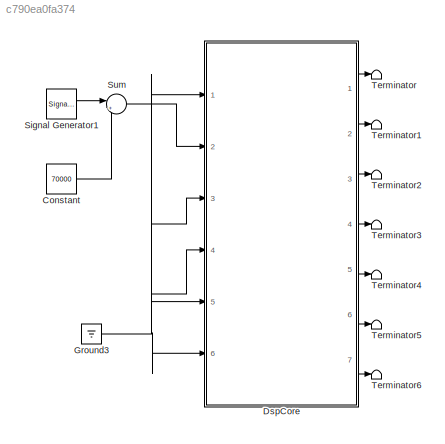
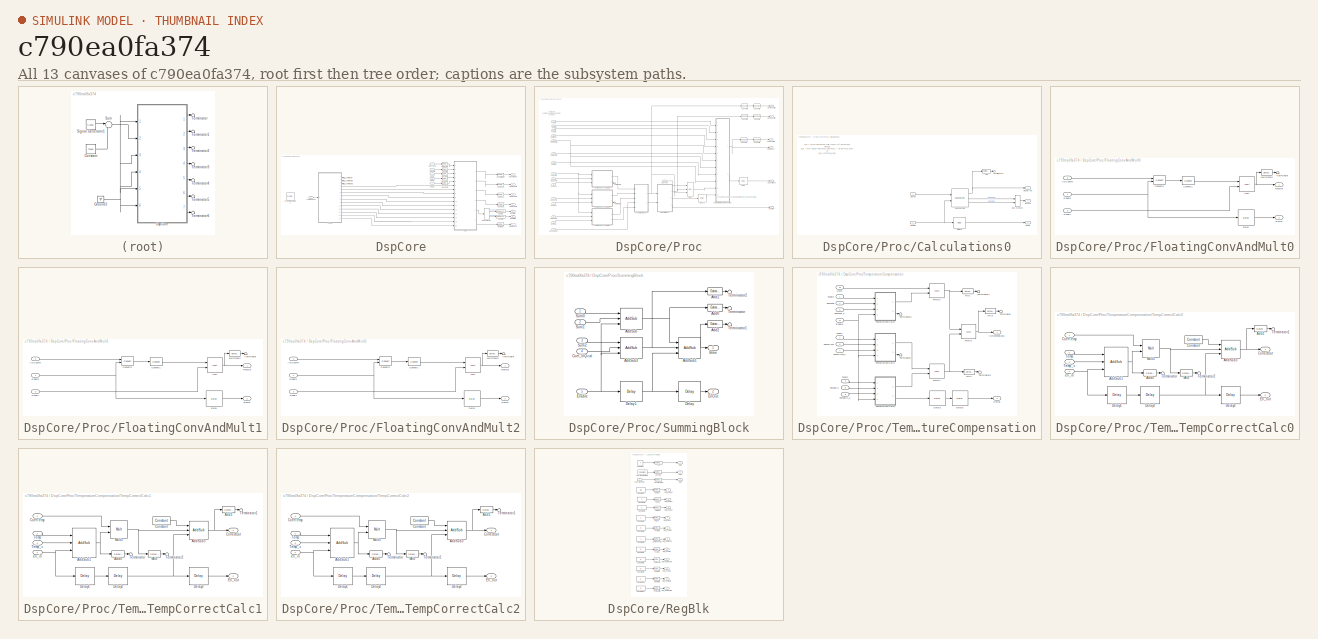
[diagram: thumbnail index - all 13 canvases of the model, root first then tree order]
MODEL slx_c790ea0fa374
KIND model
CONFIG AbsTol = auto
CONFIG EnableMultiTasking = on
CONFIG FixedStep = auto
CONFIG MaxStep = 10e-6
CONFIG MinStep = auto
CONFIG RelTol = 1e-3
CONFIG SampleTimeConstraint = Unconstrained
CONFIG Solver = ode45
CONFIG SolverName = ode45
CONFIG StartTime = 0.0
CONFIG StopTime = 1
BLOCK [Constant] Constant
  Value = 70000
BLOCK [SubSystem] DspCore
  Ports = [6, 7]
  RequestExecContextInheritance = off
  Variant = off
BLOCK [Reference] DspCore/ System Generator1  REF=xbsIndex_r4/ System Generator
  AttributesFormatString = System\nGenerator
  Ports = []
  SourceBlock = xbsIndex_r4/ System Generator
  SourceType = Xilinx System Generator Block
  Tag = genX
  UserDataPersistent = on
BLOCK [Reference] DspCore/ADCRes1  REF=xbsIndex_r4/Gateway Out
  Ports = [1, 1]
  SourceBlock = xbsIndex_r4/Gateway Out
  SourceType = Xilinx Gateway Out Block
BLOCK [Outport] DspCore/ADCResult0
  IconDisplay = Port number
  Port = 4
BLOCK [Outport] DspCore/ADCResult1
  IconDisplay = Port number
  Port = 3
BLOCK [Outport] DspCore/ADCResult2
  IconDisplay = Port number
  Port = 2
BLOCK [Inport] DspCore/ADCValid
  IconDisplay = Port number
  Port = 5
BLOCK [Outport] DspCore/ADCValidOut
  IconDisplay = Port number
BLOCK [Reference] DspCore/AdcRes0  REF=xbsIndex_r4/Gateway Out
  Ports = [1, 1]
  SourceBlock = xbsIndex_r4/Gateway Out
  SourceType = Xilinx Gateway Out Block
BLOCK [Reference] DspCore/AdcRes2  REF=xbsIndex_r4/Gateway Out
  Ports = [1, 1]
  SourceBlock = xbsIndex_r4/Gateway Out
  SourceType = Xilinx Gateway Out Block
BLOCK [Reference] DspCore/AdcSum0  REF=xbsIndex_r4/Gateway In
  Ports = [1, 1]
  SourceBlock = xbsIndex_r4/Gateway In
  SourceType = Xilinx Gateway In Block
BLOCK [Reference] DspCore/AdcSum1  REF=xbsIndex_r4/Gateway In
  Ports = [1, 1]
  SourceBlock = xbsIndex_r4/Gateway In
  SourceType = Xilinx Gateway In Block
BLOCK [Reference] DspCore/AdcSum2  REF=xbsIndex_r4/Gateway In
  Ports = [1, 1]
  SourceBlock = xbsIndex_r4/Gateway In
  SourceType = Xilinx Gateway In Block
BLOCK [Reference] DspCore/AdcValid  REF=xbsIndex_r4/Gateway In
  Ports = [1, 1]
  SourceBlock = xbsIndex_r4/Gateway In
  SourceType = Xilinx Gateway In Block
BLOCK [Reference] DspCore/AdcValidOut  REF=xbsIndex_r4/Gateway Out
  Ports = [1, 1]
  SourceBlock = xbsIndex_r4/Gateway Out
  SourceType = Xilinx Gateway Out Block
BLOCK [Inport] DspCore/Adc[0]
  IconDisplay = Port number
  Port = 2
BLOCK [Inport] DspCore/Adc[1]
  IconDisplay = Port number
  Port = 3
BLOCK [Inport] DspCore/Adc[2]
  IconDisplay = Port number
  Port = 4
BLOCK [Reference] DspCore/AppType  REF=xbsIndex_r4/Gateway In
  Ports = [1, 1]
  SourceBlock = xbsIndex_r4/Gateway In
  SourceType = Xilinx Gateway In Block
BLOCK [Inport] DspCore/AppType1
  IconDisplay = Port number
  Port = 6
BLOCK [BusSelector] DspCore/Bus Selector
  OutputSignals = ExpUnder,ExpOver
  Ports = [1, 2]
BLOCK [Reference] DspCore/DSPErr  REF=xbsIndex_r4/Gateway Out
  Ports = [1, 1]
  SourceBlock = xbsIndex_r4/Gateway Out
  SourceType = Xilinx Gateway Out Block
BLOCK [Reference] DspCore/DSPErr1  REF=xbsIndex_r4/Gateway Out
  Ports = [1, 1]
  SourceBlock = xbsIndex_r4/Gateway Out
  SourceType = Xilinx Gateway Out Block
BLOCK [Outport] DspCore/DSPError
  IconDisplay = Port number
  Port = 5
BLOCK [Outport] DspCore/DSPError1
  IconDisplay = Port number
  Port = 6
BLOCK [Reference] DspCore/FloatRes  REF=xbsIndex_r4/Gateway Out
  Ports = [1, 1]
  SourceBlock = xbsIndex_r4/Gateway Out
  SourceType = Xilinx Gateway Out Block
BLOCK [Outport] DspCore/FloatResult
  IconDisplay = Port number
  Port = 7
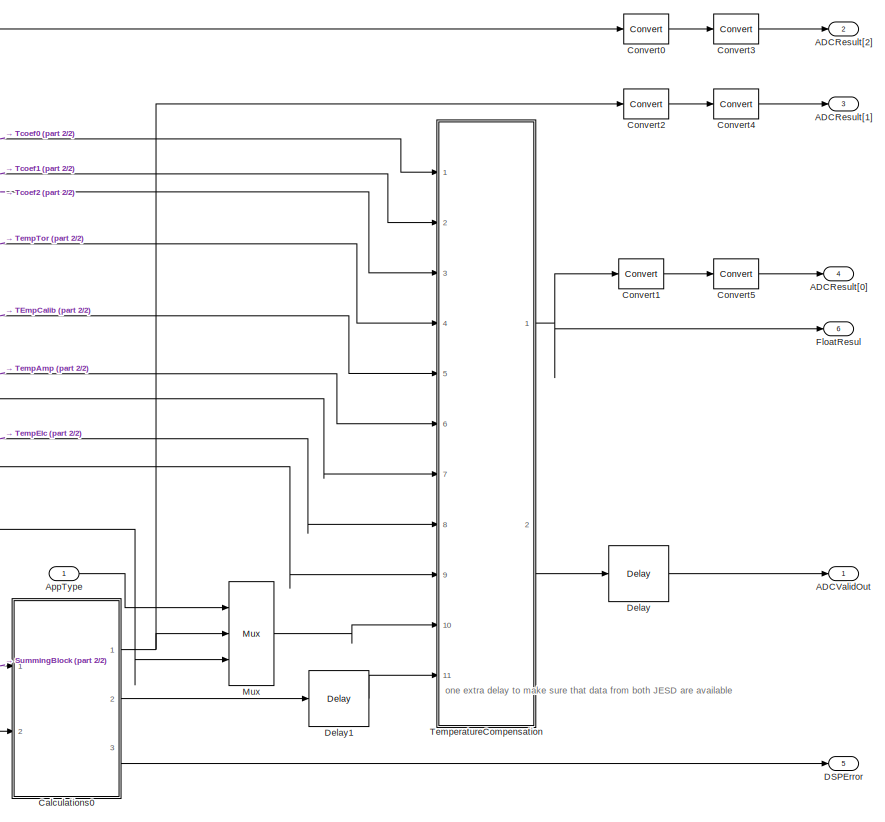
[diagram: DspCore/Proc - part 1/2, right side, full height]
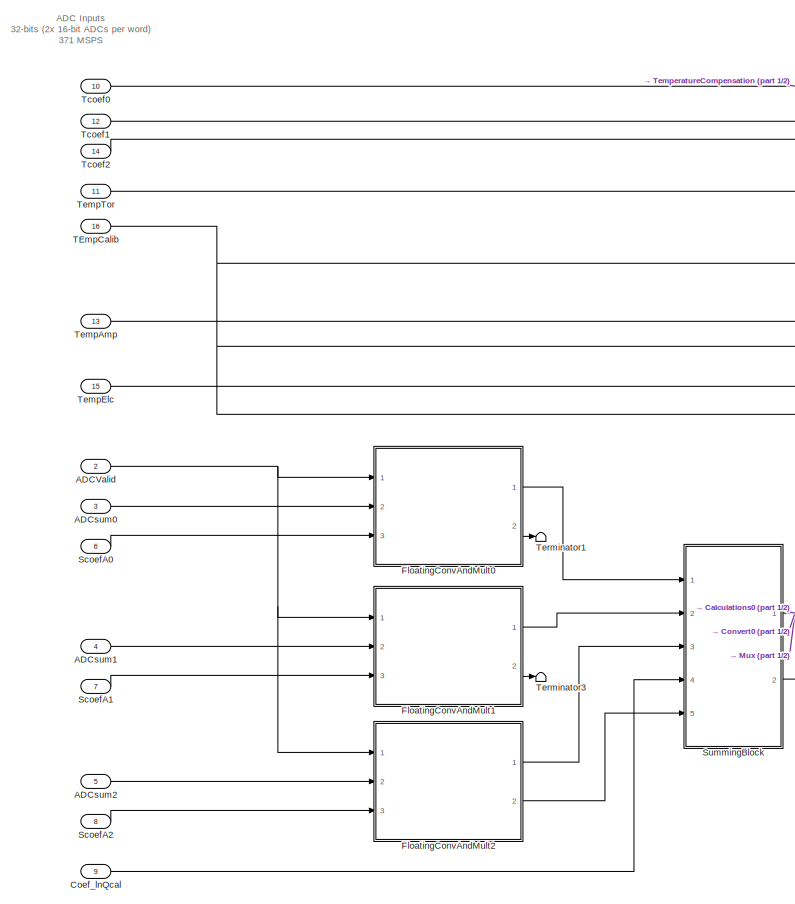
[diagram: DspCore/Proc - part 2/2, left side, full height]
BLOCK [SubSystem] DspCore/Proc
  Ports = [16, 6]
  RequestExecContextInheritance = off
  Variant = off
BLOCK [Outport] DspCore/Proc/ADCResult[0]
  IconDisplay = Port number
  Port = 4
BLOCK [Outport] DspCore/Proc/ADCResult[1]
  IconDisplay = Port number
  Port = 3
BLOCK [Outport] DspCore/Proc/ADCResult[2]
  IconDisplay = Port number
  Port = 2
BLOCK [Inport] DspCore/Proc/ADCValid
  IconDisplay = Port number
  Port = 2
BLOCK [Outport] DspCore/Proc/ADCValidOut
  IconDisplay = Port number
BLOCK [Inport] DspCore/Proc/ADCsum0
  IconDisplay = Port number
  Port = 3
BLOCK [Inport] DspCore/Proc/ADCsum1
  IconDisplay = Port number
  Port = 4
BLOCK [Inport] DspCore/Proc/ADCsum2
  IconDisplay = Port number
  Port = 5
BLOCK [Inport] DspCore/Proc/AppType
  IconDisplay = Port number
BLOCK [SubSystem] DspCore/Proc/Calculations0
  Ports = [2, 3]
  RequestExecContextInheritance = off
  Variant = off
BLOCK [Reference] DspCore/Proc/Calculations0/Add  REF=xbsIndex_r4/Gateway Out
  Ports = [1, 1]
  SourceBlock = xbsIndex_r4/Gateway Out
  SourceType = Xilinx Gateway Out Block
BLOCK [BusCreator] DspCore/Proc/Calculations0/Bus Creator
  DisplayOption = bar
  InheritFromInputs = on
  Inputs = 2
  Ports = [2, 1]
BLOCK [Inport] DspCore/Proc/Calculations0/Data0
  IconDisplay = Port number
BLOCK [Reference] DspCore/Proc/Calculations0/Delay1  REF=xbsIndex_r4/Delay
  Ports = [1, 1]
  SourceBlock = xbsIndex_r4/Delay
  SourceType = Xilinx Delay Block
BLOCK [Outport] DspCore/Proc/Calculations0/EnOut
  IconDisplay = Port number
  Port = 2
BLOCK [Inport] DspCore/Proc/Calculations0/Enable
  IconDisplay = Port number
  Port = 2
BLOCK [Outport] DspCore/Proc/Calculations0/Errors
  IconDisplay = Port number
  Port = 3
BLOCK [Reference] DspCore/Proc/Calculations0/Exponential1  REF=xbsIndex_r4/Exponential
  Ports = [2, 3]
  SourceBlock = xbsIndex_r4/Exponential
  SourceType = Xilinx Exponential Block
BLOCK [Outport] DspCore/Proc/Calculations0/Result out
  IconDisplay = Port number
BLOCK [Terminator] DspCore/Proc/Calculations0/Terminator6
BLOCK [Inport] DspCore/Proc/Coef_lnQcal
  IconDisplay = Port number
  Port = 9
  SampleTime = 5.385E-9
BLOCK [Reference] DspCore/Proc/Convert0  REF=xbsIndex_r4/Convert
  Ports = [1, 1]
  SourceBlock = xbsIndex_r4/Convert
  SourceType = Xilinx Type Converter Block
BLOCK [Reference] DspCore/Proc/Convert1  REF=xbsIndex_r4/Convert
  Ports = [1, 1]
  SourceBlock = xbsIndex_r4/Convert
  SourceType = Xilinx Type Converter Block
BLOCK [Reference] DspCore/Proc/Convert2  REF=xbsIndex_r4/Convert
  Ports = [1, 1]
  SourceBlock = xbsIndex_r4/Convert
  SourceType = Xilinx Type Converter Block
BLOCK [Reference] DspCore/Proc/Convert3  REF=xbsIndex_r4/Convert
  Ports = [1, 1]
  SourceBlock = xbsIndex_r4/Convert
  SourceType = Xilinx Type Converter Block
BLOCK [Reference] DspCore/Proc/Convert4  REF=xbsIndex_r4/Convert
  Ports = [1, 1]
  SourceBlock = xbsIndex_r4/Convert
  SourceType = Xilinx Type Converter Block
BLOCK [Reference] DspCore/Proc/Convert5  REF=xbsIndex_r4/Convert
  Ports = [1, 1]
  SourceBlock = xbsIndex_r4/Convert
  SourceType = Xilinx Type Converter Block
BLOCK [Outport] DspCore/Proc/DSPError
  IconDisplay = Port number
  Port = 5
BLOCK [Reference] DspCore/Proc/Delay  REF=xbsIndex_r4/Delay
  Ports = [1, 1]
  SourceBlock = xbsIndex_r4/Delay
  SourceType = Xilinx Delay Block
BLOCK [Reference] DspCore/Proc/Delay1  REF=xbsIndex_r4/Delay
  Ports = [1, 1]
  SourceBlock = xbsIndex_r4/Delay
  SourceType = Xilinx Delay Block
BLOCK [Outport] DspCore/Proc/FloatResul
  IconDisplay = Port number
  Port = 6
BLOCK [SubSystem] DspCore/Proc/FloatingConvAndMult0
  Ports = [3, 2]
  RequestExecContextInheritance = off
  Variant = off
BLOCK [Inport] DspCore/Proc/FloatingConvAndMult0/ADCsum0
  IconDisplay = Port number
  Port = 2
BLOCK [Reference] DspCore/Proc/FloatingConvAndMult0/Convert0  REF=xbsIndex_r4/Convert
  Ports = [2, 1]
  SourceBlock = xbsIndex_r4/Convert
  SourceType = Xilinx Type Converter Block
BLOCK [Reference] DspCore/Proc/FloatingConvAndMult0/Convert1  REF=xbsIndex_r4/Convert
  Ports = [1, 1]
  SourceBlock = xbsIndex_r4/Convert
  SourceType = Xilinx Type Converter Block
BLOCK [Reference] DspCore/Proc/FloatingConvAndMult0/Delay  REF=xbsIndex_r4/Delay
  Ports = [1, 1]
  SourceBlock = xbsIndex_r4/Delay
  SourceType = Xilinx Delay Block
BLOCK [Outport] DspCore/Proc/FloatingConvAndMult0/EnOut
  IconDisplay = Port number
  Port = 2
BLOCK [Inport] DspCore/Proc/FloatingConvAndMult0/Enable
  IconDisplay = Port number
  SampleTime = 5.385E-9
BLOCK [Reference] DspCore/Proc/FloatingConvAndMult0/Mult  REF=xbsIndex_r4/Mult
  Ports = [2, 1]
  SourceBlock = xbsIndex_r4/Mult
  SourceType = Xilinx Multiplier Block
BLOCK [Reference] DspCore/Proc/FloatingConvAndMult0/MultResult  REF=xbsIndex_r4/Gateway Out
  Ports = [1, 1]
  SourceBlock = xbsIndex_r4/Gateway Out
  SourceType = Xilinx Gateway Out Block
BLOCK [Outport] DspCore/Proc/FloatingConvAndMult0/ResOut
  IconDisplay = Port number
BLOCK [Inport] DspCore/Proc/FloatingConvAndMult0/ScoefA
  IconDisplay = Port number
  Port = 3
  SampleTime = 5.385E-9
BLOCK [Terminator] DspCore/Proc/FloatingConvAndMult0/Terminator
BLOCK [SubSystem] DspCore/Proc/FloatingConvAndMult1
  Ports = [3, 2]
  RequestExecContextInheritance = off
  Variant = off
BLOCK [Inport] DspCore/Proc/FloatingConvAndMult1/ADCsum0
  IconDisplay = Port number
  Port = 2
BLOCK [Reference] DspCore/Proc/FloatingConvAndMult1/Convert0  REF=xbsIndex_r4/Convert
  Ports = [2, 1]
  SourceBlock = xbsIndex_r4/Convert
  SourceType = Xilinx Type Converter Block
BLOCK [Reference] DspCore/Proc/FloatingConvAndMult1/Convert1  REF=xbsIndex_r4/Convert
  Ports = [1, 1]
  SourceBlock = xbsIndex_r4/Convert
  SourceType = Xilinx Type Converter Block
BLOCK [Reference] DspCore/Proc/FloatingConvAndMult1/Delay  REF=xbsIndex_r4/Delay
  Ports = [1, 1]
  SourceBlock = xbsIndex_r4/Delay
  SourceType = Xilinx Delay Block
BLOCK [Outport] DspCore/Proc/FloatingConvAndMult1/EnOut
  IconDisplay = Port number
  Port = 2
BLOCK [Inport] DspCore/Proc/FloatingConvAndMult1/Enable
  IconDisplay = Port number
  SampleTime = 5.385E-9
BLOCK [Reference] DspCore/Proc/FloatingConvAndMult1/Mult  REF=xbsIndex_r4/Mult
  Ports = [2, 1]
  SourceBlock = xbsIndex_r4/Mult
  SourceType = Xilinx Multiplier Block
BLOCK [Reference] DspCore/Proc/FloatingConvAndMult1/MultResult  REF=xbsIndex_r4/Gateway Out
  Ports = [1, 1]
  SourceBlock = xbsIndex_r4/Gateway Out
  SourceType = Xilinx Gateway Out Block
BLOCK [Outport] DspCore/Proc/FloatingConvAndMult1/ResOut
  IconDisplay = Port number
BLOCK [Inport] DspCore/Proc/FloatingConvAndMult1/ScoefA
  IconDisplay = Port number
  Port = 3
  SampleTime = 5.385E-9
BLOCK [Terminator] DspCore/Proc/FloatingConvAndMult1/Terminator
BLOCK [SubSystem] DspCore/Proc/FloatingConvAndMult2
  Ports = [3, 2]
  RequestExecContextInheritance = off
  Variant = off
BLOCK [Inport] DspCore/Proc/FloatingConvAndMult2/ADCsum0
  IconDisplay = Port number
  Port = 2
BLOCK [Reference] DspCore/Proc/FloatingConvAndMult2/Convert0  REF=xbsIndex_r4/Convert
  Ports = [2, 1]
  SourceBlock = xbsIndex_r4/Convert
  SourceType = Xilinx Type Converter Block
BLOCK [Reference] DspCore/Proc/FloatingConvAndMult2/Convert1  REF=xbsIndex_r4/Convert
  Ports = [1, 1]
  SourceBlock = xbsIndex_r4/Convert
  SourceType = Xilinx Type Converter Block
BLOCK [Reference] DspCore/Proc/FloatingConvAndMult2/Delay  REF=xbsIndex_r4/Delay
  Ports = [1, 1]
  SourceBlock = xbsIndex_r4/Delay
  SourceType = Xilinx Delay Block
BLOCK [Outport] DspCore/Proc/FloatingConvAndMult2/EnOut
  IconDisplay = Port number
  Port = 2
BLOCK [Inport] DspCore/Proc/FloatingConvAndMult2/Enable
  IconDisplay = Port number
  SampleTime = 5.385E-9
BLOCK [Reference] DspCore/Proc/FloatingConvAndMult2/Mult  REF=xbsIndex_r4/Mult
  Ports = [2, 1]
  SourceBlock = xbsIndex_r4/Mult
  SourceType = Xilinx Multiplier Block
BLOCK [Reference] DspCore/Proc/FloatingConvAndMult2/MultResult  REF=xbsIndex_r4/Gateway Out
  Ports = [1, 1]
  SourceBlock = xbsIndex_r4/Gateway Out
  SourceType = Xilinx Gateway Out Block
BLOCK [Outport] DspCore/Proc/FloatingConvAndMult2/ResOut
  IconDisplay = Port number
BLOCK [Inport] DspCore/Proc/FloatingConvAndMult2/ScoefA
  IconDisplay = Port number
  Port = 3
  SampleTime = 5.385E-9
BLOCK [Terminator] DspCore/Proc/FloatingConvAndMult2/Terminator
BLOCK [Reference] DspCore/Proc/Mux  REF=xbsIndex_r4/Mux
  Ports = [3, 1]
  SourceBlock = xbsIndex_r4/Mux
  SourceType = Xilinx Bus Multiplexer Block
BLOCK [Inport] DspCore/Proc/ScoefA0
  IconDisplay = Port number
  Port = 6
  SampleTime = 5.385E-9
BLOCK [Inport] DspCore/Proc/ScoefA1
  IconDisplay = Port number
  Port = 7
  SampleTime = 5.385E-9
BLOCK [Inport] DspCore/Proc/ScoefA2
  IconDisplay = Port number
  Port = 8
  SampleTime = 5.385E-9
BLOCK [SubSystem] DspCore/Proc/SummingBlock
  Ports = [5, 2]
  RequestExecContextInheritance = off
  Variant = off
BLOCK [Reference] DspCore/Proc/SummingBlock/Add0  REF=xbsIndex_r4/Gateway Out
  Ports = [1, 1]
  SourceBlock = xbsIndex_r4/Gateway Out
  SourceType = Xilinx Gateway Out Block
BLOCK [Reference] DspCore/Proc/SummingBlock/Add1  REF=xbsIndex_r4/Gateway Out
  Ports = [1, 1]
  SourceBlock = xbsIndex_r4/Gateway Out
  SourceType = Xilinx Gateway Out Block
BLOCK [Reference] DspCore/Proc/SummingBlock/Add2  REF=xbsIndex_r4/Gateway Out
  Ports = [1, 1]
  SourceBlock = xbsIndex_r4/Gateway Out
  SourceType = Xilinx Gateway Out Block
BLOCK [Reference] DspCore/Proc/SummingBlock/AddSub  REF=xbsIndex_r4/AddSub
  Ports = [3, 1]
  SourceBlock = xbsIndex_r4/AddSub
  SourceType = Xilinx Adder/Subtracter Block
BLOCK [Reference] DspCore/Proc/SummingBlock/AddSub1  REF=xbsIndex_r4/AddSub
  Ports = [3, 1]
  SourceBlock = xbsIndex_r4/AddSub
  SourceType = Xilinx Adder/Subtracter Block
BLOCK [Reference] DspCore/Proc/SummingBlock/AddSub2  REF=xbsIndex_r4/AddSub
  Ports = [3, 1]
  SourceBlock = xbsIndex_r4/AddSub
  SourceType = Xilinx Adder/Subtracter Block
BLOCK [Outport] DspCore/Proc/SummingBlock/Braw
  IconDisplay = Port number
BLOCK [Inport] DspCore/Proc/SummingBlock/Coef_lnQcal
  IconDisplay = Port number
  Port = 4
BLOCK [Reference] DspCore/Proc/SummingBlock/Delay  REF=xbsIndex_r4/Delay
  Ports = [1, 1]
  SourceBlock = xbsIndex_r4/Delay
  SourceType = Xilinx Delay Block
BLOCK [Reference] DspCore/Proc/SummingBlock/Delay1  REF=xbsIndex_r4/Delay
  Ports = [1, 1]
  SourceBlock = xbsIndex_r4/Delay
  SourceType = Xilinx Delay Block
BLOCK [Outport] DspCore/Proc/SummingBlock/EnOut
  IconDisplay = Port number
  Port = 2
BLOCK [Inport] DspCore/Proc/SummingBlock/Enable
  IconDisplay = Port number
  Port = 5
BLOCK [Inport] DspCore/Proc/SummingBlock/Sum0
  IconDisplay = Port number
BLOCK [Inport] DspCore/Proc/SummingBlock/Sum1
  IconDisplay = Port number
  Port = 2
BLOCK [Inport] DspCore/Proc/SummingBlock/Sum2
  IconDisplay = Port number
  Port = 3
BLOCK [Terminator] DspCore/Proc/SummingBlock/Terminator
BLOCK [Terminator] DspCore/Proc/SummingBlock/Terminator1
BLOCK [Terminator] DspCore/Proc/SummingBlock/Terminator2
BLOCK [Inport] DspCore/Proc/TEmpCalib
  IconDisplay = Port number
  Port = 16
  SampleTime = 5.385E-9
BLOCK [Inport] DspCore/Proc/Tcoef0
  IconDisplay = Port number
  Port = 10
  SampleTime = 5.385E-9
BLOCK [Inport] DspCore/Proc/Tcoef1
  IconDisplay = Port number
  Port = 12
  SampleTime = 5.385E-9
BLOCK [Inport] DspCore/Proc/Tcoef2
  IconDisplay = Port number
  Port = 14
  SampleTime = 5.385E-9
BLOCK [Inport] DspCore/Proc/TempAmp
  IconDisplay = Port number
  Port = 13
  SampleTime = 5.385E-9
BLOCK [Inport] DspCore/Proc/TempElc
  IconDisplay = Port number
  Port = 15
  SampleTime = 5.385E-9
BLOCK [Inport] DspCore/Proc/TempTor
  IconDisplay = Port number
  Port = 11
  SampleTime = 5.385E-9
BLOCK [SubSystem] DspCore/Proc/TemperatureCompensation
  Ports = [11, 2]
  RequestExecContextInheritance = off
  Variant = off
BLOCK [Outport] DspCore/Proc/TemperatureCompensation/CorrectedData
  IconDisplay = Port number
BLOCK [Inport] DspCore/Proc/TemperatureCompensation/Data
  IconDisplay = Port number
  Port = 10
BLOCK [Reference] DspCore/Proc/TemperatureCompensation/Delay2  REF=xbsIndex_r4/Delay
  Ports = [1, 1]
  SourceBlock = xbsIndex_r4/Delay
  SourceType = Xilinx Delay Block
BLOCK [Reference] DspCore/Proc/TemperatureCompensation/Delay3  REF=xbsIndex_r4/Delay
  Ports = [1, 1]
  SourceBlock = xbsIndex_r4/Delay
  SourceType = Xilinx Delay Block
BLOCK [Outport] DspCore/Proc/TemperatureCompensation/EnOut
  IconDisplay = Port number
  Port = 2
BLOCK [Inport] DspCore/Proc/TemperatureCompensation/Enable
  IconDisplay = Port number
  Port = 11
BLOCK [Reference] DspCore/Proc/TemperatureCompensation/Fmult0  REF=xbsIndex_r4/Mult
  Ports = [2, 1]
  SourceBlock = xbsIndex_r4/Mult
  SourceType = Xilinx Multiplier Block
BLOCK [Reference] DspCore/Proc/TemperatureCompensation/Fmult1  REF=xbsIndex_r4/Mult
  Ports = [2, 1]
  SourceBlock = xbsIndex_r4/Mult
  SourceType = Xilinx Multiplier Block
BLOCK [Reference] DspCore/Proc/TemperatureCompensation/Fmult2  REF=xbsIndex_r4/Mult
  Ports = [2, 1]
  SourceBlock = xbsIndex_r4/Mult
  SourceType = Xilinx Multiplier Block
BLOCK [Reference] DspCore/Proc/TemperatureCompensation/Mlt1  REF=xbsIndex_r4/Gateway Out
  Ports = [1, 1]
  SourceBlock = xbsIndex_r4/Gateway Out
  SourceType = Xilinx Gateway Out Block
BLOCK [Reference] DspCore/Proc/TemperatureCompensation/Mlt2  REF=xbsIndex_r4/Gateway Out
  Ports = [1, 1]
  SourceBlock = xbsIndex_r4/Gateway Out
  SourceType = Xilinx Gateway Out Block
BLOCK [Reference] DspCore/Proc/TemperatureCompensation/Mlt3  REF=xbsIndex_r4/Gateway Out
  Ports = [1, 1]
  SourceBlock = xbsIndex_r4/Gateway Out
  SourceType = Xilinx Gateway Out Block
BLOCK [Inport] DspCore/Proc/TemperatureCompensation/Tcoef0
  IconDisplay = Port number
BLOCK [Inport] DspCore/Proc/TemperatureCompensation/Tcoef1
  IconDisplay = Port number
  Port = 2
BLOCK [Inport] DspCore/Proc/TemperatureCompensation/Tcoef2
  IconDisplay = Port number
  Port = 3
BLOCK [Inport] DspCore/Proc/TemperatureCompensation/TempAmp
  IconDisplay = Port number
  Port = 6
BLOCK [Inport] DspCore/Proc/TemperatureCompensation/TempAmp_c
  IconDisplay = Port number
  Port = 7
BLOCK [SubSystem] DspCore/Proc/TemperatureCompensation/TempCorrectCalc0
  Ports = [4, 2]
  RequestExecContextInheritance = off
  Variant = off
BLOCK [Reference] DspCore/Proc/TemperatureCompensation/TempCorrectCalc0/Add0  REF=xbsIndex_r4/Gateway Out
  Ports = [1, 1]
  SourceBlock = xbsIndex_r4/Gateway Out
  SourceType = Xilinx Gateway Out Block
BLOCK [Reference] DspCore/Proc/TemperatureCompensation/TempCorrectCalc0/Add1  REF=xbsIndex_r4/Gateway Out
  Ports = [1, 1]
  SourceBlock = xbsIndex_r4/Gateway Out
  SourceType = Xilinx Gateway Out Block
BLOCK [Reference] DspCore/Proc/TemperatureCompensation/TempCorrectCalc0/AddSub1  REF=xbsIndex_r4/AddSub
  Ports = [3, 1]
  SourceBlock = xbsIndex_r4/AddSub
  SourceType = Xilinx Adder/Subtracter Block
BLOCK [Reference] DspCore/Proc/TemperatureCompensation/TempCorrectCalc0/AddSub3  REF=xbsIndex_r4/AddSub
  Ports = [3, 1]
  SourceBlock = xbsIndex_r4/AddSub
  SourceType = Xilinx Adder/Subtracter Block
BLOCK [Inport] DspCore/Proc/TemperatureCompensation/TempCorrectCalc0/CoefTemp
  IconDisplay = Port number
BLOCK [Reference] DspCore/Proc/TemperatureCompensation/TempCorrectCalc0/Constant  REF=xbsIndex_r4/Constant
  Ports = [0, 1]
  SourceBlock = xbsIndex_r4/Constant
  SourceType = Xilinx Constant Block Block
BLOCK [Outport] DspCore/Proc/TemperatureCompensation/TempCorrectCalc0/CorrectOut
  IconDisplay = Port number
BLOCK [Reference] DspCore/Proc/TemperatureCompensation/TempCorrectCalc0/Delay1  REF=xbsIndex_r4/Delay
  Ports = [1, 1]
  SourceBlock = xbsIndex_r4/Delay
  SourceType = Xilinx Delay Block
BLOCK [Reference] DspCore/Proc/TemperatureCompensation/TempCorrectCalc0/Delay2  REF=xbsIndex_r4/Delay
  Ports = [1, 1]
  SourceBlock = xbsIndex_r4/Delay
  SourceType = Xilinx Delay Block
BLOCK [Reference] DspCore/Proc/TemperatureCompensation/TempCorrectCalc0/Delay3  REF=xbsIndex_r4/Delay
  Ports = [1, 1]
  SourceBlock = xbsIndex_r4/Delay
  SourceType = Xilinx Delay Block
BLOCK [Outport] DspCore/Proc/TemperatureCompensation/TempCorrectCalc0/En_out
  IconDisplay = Port number
  Port = 2
BLOCK [Reference] DspCore/Proc/TemperatureCompensation/TempCorrectCalc0/Mlt0  REF=xbsIndex_r4/Gateway Out
  Ports = [1, 1]
  SourceBlock = xbsIndex_r4/Gateway Out
  SourceType = Xilinx Gateway Out Block
BLOCK [Reference] DspCore/Proc/TemperatureCompensation/TempCorrectCalc0/Mult3  REF=xbsIndex_r4/Mult
  Ports = [2, 1]
  SourceBlock = xbsIndex_r4/Mult
  SourceType = Xilinx Multiplier Block
BLOCK [Inport] DspCore/Proc/TemperatureCompensation/TempCorrectCalc0/Temp
  IconDisplay = Port number
  Port = 2
BLOCK [Inport] DspCore/Proc/TemperatureCompensation/TempCorrectCalc0/Temp_c
  IconDisplay = Port number
  Port = 3
BLOCK [Terminator] DspCore/Proc/TemperatureCompensation/TempCorrectCalc0/Terminator
BLOCK [Terminator] DspCore/Proc/TemperatureCompensation/TempCorrectCalc0/Terminator1
BLOCK [Terminator] DspCore/Proc/TemperatureCompensation/TempCorrectCalc0/Terminator2
BLOCK [Inport] DspCore/Proc/TemperatureCompensation/TempCorrectCalc0/en_in
  IconDisplay = Port number
  Port = 4
BLOCK [SubSystem] DspCore/Proc/TemperatureCompensation/TempCorrectCalc1
  Ports = [4, 2]
  RequestExecContextInheritance = off
  Variant = off
BLOCK [Reference] DspCore/Proc/TemperatureCompensation/TempCorrectCalc1/Add0  REF=xbsIndex_r4/Gateway Out
  Ports = [1, 1]
  SourceBlock = xbsIndex_r4/Gateway Out
  SourceType = Xilinx Gateway Out Block
BLOCK [Reference] DspCore/Proc/TemperatureCompensation/TempCorrectCalc1/Add1  REF=xbsIndex_r4/Gateway Out
  Ports = [1, 1]
  SourceBlock = xbsIndex_r4/Gateway Out
  SourceType = Xilinx Gateway Out Block
BLOCK [Reference] DspCore/Proc/TemperatureCompensation/TempCorrectCalc1/AddSub1  REF=xbsIndex_r4/AddSub
  Ports = [3, 1]
  SourceBlock = xbsIndex_r4/AddSub
  SourceType = Xilinx Adder/Subtracter Block
BLOCK [Reference] DspCore/Proc/TemperatureCompensation/TempCorrectCalc1/AddSub3  REF=xbsIndex_r4/AddSub
  Ports = [3, 1]
  SourceBlock = xbsIndex_r4/AddSub
  SourceType = Xilinx Adder/Subtracter Block
BLOCK [Inport] DspCore/Proc/TemperatureCompensation/TempCorrectCalc1/CoefTemp
  IconDisplay = Port number
BLOCK [Reference] DspCore/Proc/TemperatureCompensation/TempCorrectCalc1/Constant  REF=xbsIndex_r4/Constant
  Ports = [0, 1]
  SourceBlock = xbsIndex_r4/Constant
  SourceType = Xilinx Constant Block Block
BLOCK [Outport] DspCore/Proc/TemperatureCompensation/TempCorrectCalc1/CorrectOut
  IconDisplay = Port number
BLOCK [Reference] DspCore/Proc/TemperatureCompensation/TempCorrectCalc1/Delay1  REF=xbsIndex_r4/Delay
  Ports = [1, 1]
  SourceBlock = xbsIndex_r4/Delay
  SourceType = Xilinx Delay Block
BLOCK [Reference] DspCore/Proc/TemperatureCompensation/TempCorrectCalc1/Delay2  REF=xbsIndex_r4/Delay
  Ports = [1, 1]
  SourceBlock = xbsIndex_r4/Delay
  SourceType = Xilinx Delay Block
BLOCK [Reference] DspCore/Proc/TemperatureCompensation/TempCorrectCalc1/Delay3  REF=xbsIndex_r4/Delay
  Ports = [1, 1]
  SourceBlock = xbsIndex_r4/Delay
  SourceType = Xilinx Delay Block
BLOCK [Outport] DspCore/Proc/TemperatureCompensation/TempCorrectCalc1/En_out
  IconDisplay = Port number
  Port = 2
BLOCK [Reference] DspCore/Proc/TemperatureCompensation/TempCorrectCalc1/Mlt0  REF=xbsIndex_r4/Gateway Out
  Ports = [1, 1]
  SourceBlock = xbsIndex_r4/Gateway Out
  SourceType = Xilinx Gateway Out Block
BLOCK [Reference] DspCore/Proc/TemperatureCompensation/TempCorrectCalc1/Mult3  REF=xbsIndex_r4/Mult
  Ports = [2, 1]
  SourceBlock = xbsIndex_r4/Mult
  SourceType = Xilinx Multiplier Block
BLOCK [Inport] DspCore/Proc/TemperatureCompensation/TempCorrectCalc1/Temp
  IconDisplay = Port number
  Port = 2
BLOCK [Inport] DspCore/Proc/TemperatureCompensation/TempCorrectCalc1/Temp_c
  IconDisplay = Port number
  Port = 3
BLOCK [Terminator] DspCore/Proc/TemperatureCompensation/TempCorrectCalc1/Terminator
BLOCK [Terminator] DspCore/Proc/TemperatureCompensation/TempCorrectCalc1/Terminator1
BLOCK [Terminator] DspCore/Proc/TemperatureCompensation/TempCorrectCalc1/Terminator2
BLOCK [Inport] DspCore/Proc/TemperatureCompensation/TempCorrectCalc1/en_in
  IconDisplay = Port number
  Port = 4
BLOCK [SubSystem] DspCore/Proc/TemperatureCompensation/TempCorrectCalc2
  Ports = [4, 2]
  RequestExecContextInheritance = off
  Variant = off
BLOCK [Reference] DspCore/Proc/TemperatureCompensation/TempCorrectCalc2/Add0  REF=xbsIndex_r4/Gateway Out
  Ports = [1, 1]
  SourceBlock = xbsIndex_r4/Gateway Out
  SourceType = Xilinx Gateway Out Block
BLOCK [Reference] DspCore/Proc/TemperatureCompensation/TempCorrectCalc2/Add1  REF=xbsIndex_r4/Gateway Out
  Ports = [1, 1]
  SourceBlock = xbsIndex_r4/Gateway Out
  SourceType = Xilinx Gateway Out Block
BLOCK [Reference] DspCore/Proc/TemperatureCompensation/TempCorrectCalc2/AddSub1  REF=xbsIndex_r4/AddSub
  Ports = [3, 1]
  SourceBlock = xbsIndex_r4/AddSub
  SourceType = Xilinx Adder/Subtracter Block
BLOCK [Reference] DspCore/Proc/TemperatureCompensation/TempCorrectCalc2/AddSub3  REF=xbsIndex_r4/AddSub
  Ports = [3, 1]
  SourceBlock = xbsIndex_r4/AddSub
  SourceType = Xilinx Adder/Subtracter Block
BLOCK [Inport] DspCore/Proc/TemperatureCompensation/TempCorrectCalc2/CoefTemp
  IconDisplay = Port number
BLOCK [Reference] DspCore/Proc/TemperatureCompensation/TempCorrectCalc2/Constant  REF=xbsIndex_r4/Constant
  Ports = [0, 1]
  SourceBlock = xbsIndex_r4/Constant
  SourceType = Xilinx Constant Block Block
BLOCK [Outport] DspCore/Proc/TemperatureCompensation/TempCorrectCalc2/CorrectOut
  IconDisplay = Port number
BLOCK [Reference] DspCore/Proc/TemperatureCompensation/TempCorrectCalc2/Delay1  REF=xbsIndex_r4/Delay
  Ports = [1, 1]
  SourceBlock = xbsIndex_r4/Delay
  SourceType = Xilinx Delay Block
BLOCK [Reference] DspCore/Proc/TemperatureCompensation/TempCorrectCalc2/Delay2  REF=xbsIndex_r4/Delay
  Ports = [1, 1]
  SourceBlock = xbsIndex_r4/Delay
  SourceType = Xilinx Delay Block
BLOCK [Reference] DspCore/Proc/TemperatureCompensation/TempCorrectCalc2/Delay3  REF=xbsIndex_r4/Delay
  Ports = [1, 1]
  SourceBlock = xbsIndex_r4/Delay
  SourceType = Xilinx Delay Block
BLOCK [Outport] DspCore/Proc/TemperatureCompensation/TempCorrectCalc2/En_out
  IconDisplay = Port number
  Port = 2
BLOCK [Reference] DspCore/Proc/TemperatureCompensation/TempCorrectCalc2/Mlt0  REF=xbsIndex_r4/Gateway Out
  Ports = [1, 1]
  SourceBlock = xbsIndex_r4/Gateway Out
  SourceType = Xilinx Gateway Out Block
BLOCK [Reference] DspCore/Proc/TemperatureCompensation/TempCorrectCalc2/Mult3  REF=xbsIndex_r4/Mult
  Ports = [2, 1]
  SourceBlock = xbsIndex_r4/Mult
  SourceType = Xilinx Multiplier Block
BLOCK [Inport] DspCore/Proc/TemperatureCompensation/TempCorrectCalc2/Temp
  IconDisplay = Port number
  Port = 2
BLOCK [Inport] DspCore/Proc/TemperatureCompensation/TempCorrectCalc2/Temp_c
  IconDisplay = Port number
  Port = 3
BLOCK [Terminator] DspCore/Proc/TemperatureCompensation/TempCorrectCalc2/Terminator
BLOCK [Terminator] DspCore/Proc/TemperatureCompensation/TempCorrectCalc2/Terminator1
BLOCK [Terminator] DspCore/Proc/TemperatureCompensation/TempCorrectCalc2/Terminator2
BLOCK [Inport] DspCore/Proc/TemperatureCompensation/TempCorrectCalc2/en_in
  IconDisplay = Port number
  Port = 4
BLOCK [Inport] DspCore/Proc/TemperatureCompensation/TempElc
  IconDisplay = Port number
  Port = 8
BLOCK [Inport] DspCore/Proc/TemperatureCompensation/TempElc_c
  IconDisplay = Port number
  Port = 9
BLOCK [Inport] DspCore/Proc/TemperatureCompensation/TempTor
  IconDisplay = Port number
  Port = 4
BLOCK [Inport] DspCore/Proc/TemperatureCompensation/TempTor_c
  IconDisplay = Port number
  Port = 5
BLOCK [Terminator] DspCore/Proc/TemperatureCompensation/Terminator
BLOCK [Terminator] DspCore/Proc/TemperatureCompensation/Terminator1
BLOCK [Terminator] DspCore/Proc/TemperatureCompensation/Terminator2
BLOCK [Terminator] DspCore/Proc/TemperatureCompensation/Terminator3
BLOCK [Terminator] DspCore/Proc/TemperatureCompensation/Terminator6
BLOCK [Terminator] DspCore/Proc/Terminator1
BLOCK [Terminator] DspCore/Proc/Terminator3
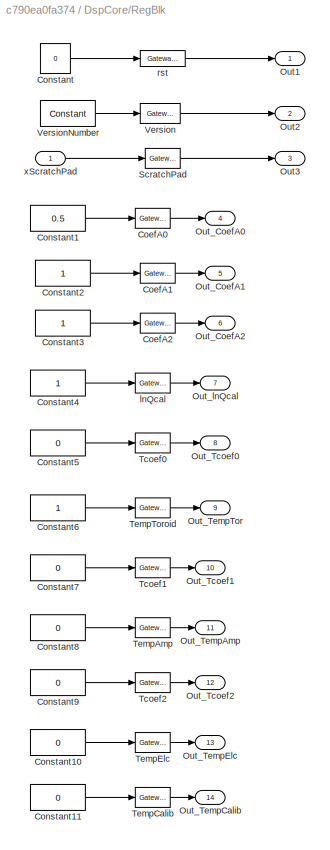
BLOCK [SubSystem] DspCore/RegBlk
  Ports = [1, 14]
  RequestExecContextInheritance = off
  Variant = off
BLOCK [Reference] DspCore/RegBlk/CoefA0  REF=xbsIndex_r4/Gateway In
  Ports = [1, 1]
  SourceBlock = xbsIndex_r4/Gateway In
  SourceType = Xilinx Gateway In Block
BLOCK [Reference] DspCore/RegBlk/CoefA1  REF=xbsIndex_r4/Gateway In
  Ports = [1, 1]
  SourceBlock = xbsIndex_r4/Gateway In
  SourceType = Xilinx Gateway In Block
BLOCK [Reference] DspCore/RegBlk/CoefA2  REF=xbsIndex_r4/Gateway In
  Ports = [1, 1]
  SourceBlock = xbsIndex_r4/Gateway In
  SourceType = Xilinx Gateway In Block
BLOCK [Constant] DspCore/RegBlk/Constant
  Value = 0
BLOCK [Constant] DspCore/RegBlk/Constant1
  Value = 0.5
BLOCK [Constant] DspCore/RegBlk/Constant10
  Value = 0
BLOCK [Constant] DspCore/RegBlk/Constant11
  Value = 0
BLOCK [Constant] DspCore/RegBlk/Constant2
BLOCK [Constant] DspCore/RegBlk/Constant3
BLOCK [Constant] DspCore/RegBlk/Constant4
BLOCK [Constant] DspCore/RegBlk/Constant5
  Value = 0
BLOCK [Constant] DspCore/RegBlk/Constant6
BLOCK [Constant] DspCore/RegBlk/Constant7
  Value = 0
BLOCK [Constant] DspCore/RegBlk/Constant8
  Value = 0
BLOCK [Constant] DspCore/RegBlk/Constant9
  Value = 0
BLOCK [Outport] DspCore/RegBlk/Out1
  IconDisplay = Port number
BLOCK [Outport] DspCore/RegBlk/Out2
  IconDisplay = Port number
  Port = 2
BLOCK [Outport] DspCore/RegBlk/Out3
  IconDisplay = Port number
  Port = 3
BLOCK [Outport] DspCore/RegBlk/Out_CoefA0
  IconDisplay = Port number
  Port = 4
BLOCK [Outport] DspCore/RegBlk/Out_CoefA1
  IconDisplay = Port number
  Port = 5
BLOCK [Outport] DspCore/RegBlk/Out_CoefA2
  IconDisplay = Port number
  Port = 6
BLOCK [Outport] DspCore/RegBlk/Out_Tcoef0
  IconDisplay = Port number
  Port = 8
BLOCK [Outport] DspCore/RegBlk/Out_Tcoef1
  IconDisplay = Port number
  Port = 10
BLOCK [Outport] DspCore/RegBlk/Out_Tcoef2
  IconDisplay = Port number
  Port = 12
BLOCK [Outport] DspCore/RegBlk/Out_TempAmp
  IconDisplay = Port number
  Port = 11
BLOCK [Outport] DspCore/RegBlk/Out_TempCalib
  IconDisplay = Port number
  Port = 14
BLOCK [Outport] DspCore/RegBlk/Out_TempElc
  IconDisplay = Port number
  Port = 13
BLOCK [Outport] DspCore/RegBlk/Out_TempTor
  IconDisplay = Port number
  Port = 9
BLOCK [Outport] DspCore/RegBlk/Out_lnQcal
  IconDisplay = Port number
  Port = 7
BLOCK [Reference] DspCore/RegBlk/ScratchPad  REF=xbsIndex_r4/Gateway In
  Ports = [1, 1]
  SourceBlock = xbsIndex_r4/Gateway In
  SourceType = Xilinx Gateway In Block
BLOCK [Reference] DspCore/RegBlk/Tcoef0  REF=xbsIndex_r4/Gateway In
  Ports = [1, 1]
  SourceBlock = xbsIndex_r4/Gateway In
  SourceType = Xilinx Gateway In Block
BLOCK [Reference] DspCore/RegBlk/Tcoef1  REF=xbsIndex_r4/Gateway In
  Ports = [1, 1]
  SourceBlock = xbsIndex_r4/Gateway In
  SourceType = Xilinx Gateway In Block
BLOCK [Reference] DspCore/RegBlk/Tcoef2  REF=xbsIndex_r4/Gateway In
  Ports = [1, 1]
  SourceBlock = xbsIndex_r4/Gateway In
  SourceType = Xilinx Gateway In Block
BLOCK [Reference] DspCore/RegBlk/TempAmp  REF=xbsIndex_r4/Gateway In
  Ports = [1, 1]
  SourceBlock = xbsIndex_r4/Gateway In
  SourceType = Xilinx Gateway In Block
BLOCK [Reference] DspCore/RegBlk/TempCalib  REF=xbsIndex_r4/Gateway In
  Ports = [1, 1]
  SourceBlock = xbsIndex_r4/Gateway In
  SourceType = Xilinx Gateway In Block
BLOCK [Reference] DspCore/RegBlk/TempElc  REF=xbsIndex_r4/Gateway In
  Ports = [1, 1]
  SourceBlock = xbsIndex_r4/Gateway In
  SourceType = Xilinx Gateway In Block
BLOCK [Reference] DspCore/RegBlk/TempToroid  REF=xbsIndex_r4/Gateway In
  Ports = [1, 1]
  SourceBlock = xbsIndex_r4/Gateway In
  SourceType = Xilinx Gateway In Block
BLOCK [Reference] DspCore/RegBlk/Version  REF=xbsIndex_r4/Gateway Out
  Ports = [1, 1]
  SourceBlock = xbsIndex_r4/Gateway Out
  SourceType = Xilinx Gateway Out Block
BLOCK [Reference] DspCore/RegBlk/VersionNumber  REF=xbsIndex_r4/Constant
  Ports = [0, 1]
  SourceBlock = xbsIndex_r4/Constant
  SourceType = Xilinx Constant Block Block
BLOCK [Reference] DspCore/RegBlk/lnQcal  REF=xbsIndex_r4/Gateway In
  Ports = [1, 1]
  SourceBlock = xbsIndex_r4/Gateway In
  SourceType = Xilinx Gateway In Block
BLOCK [Reference] DspCore/RegBlk/rst  REF=xbsIndex_r4/Gateway In
  Ports = [1, 1]
  SourceBlock = xbsIndex_r4/Gateway In
  SourceType = Xilinx Gateway In Block
BLOCK [Inport] DspCore/RegBlk/xScratchPad
  IconDisplay = Port number
BLOCK [Terminator] DspCore/Terminator
BLOCK [Terminator] DspCore/Terminator1
BLOCK [Terminator] DspCore/Terminator2
BLOCK [Inport] DspCore/xScratchPad
  IconDisplay = Port number
BLOCK [Ground] Ground3
BLOCK [SignalGenerator] Signal Generator1
  Amplitude = 65000
  Frequency = 1E+6
  Ports = [0, 1]
  Units = rad/sec
BLOCK [Sum] Sum
  IconShape = round
  InputSameDT = off
  Inputs = |++
  OutDataTypeStr = Inherit: Inherit via internal rule
  Ports = [2, 1]
  SaturateOnIntegerOverflow = off
BLOCK [Terminator] Terminator
BLOCK [Terminator] Terminator1
BLOCK [Terminator] Terminator2
BLOCK [Terminator] Terminator3
BLOCK [Terminator] Terminator4
BLOCK [Terminator] Terminator5
BLOCK [Terminator] Terminator6
ANNOTATION DspCore/Proc: ADC Inputs 32-bits (2x 16-bit ADCs per word) 371 MSPS
ANNOTATION DspCore/Proc: one extra delay to make sure that data from both JESD are available
ANNOTATION DspCore/Proc/Calculations0: Q_in = Q_cal*(Real losses/calib Loses)*10^(Braw/Ucal) Rewrite Q_in = exp^(lnQcal*(Real loses/calib loses) + Braw*(ln10/Ucal)) Or Q_in= exp^Braw_new BRaw=SUM0(ADC(i))*A0+ SUM1(ADC(i))*A1 +SUM2(ADC(i))*A2 SUms done outside of core Braw_new = SUM0(ADC(i))*A0_new+ SUM1(ADC(i))*A1_new +SUM2(ADC(i))*A2_new + CoefB A0_new = A0 *(ln10/Ucal) A1_new = A1 *(ln10/Ucal) A2_new = A2 *(ln10/Ucal) CoefB = ln(Qcal...<+48ch>
LINE Constant:1 -> Sum:2
LINE DspCore/ADCRes1:1 -> DspCore/ADCResult1:1
LINE DspCore/ADCValid:1 -> DspCore/AdcValid:1
LINE DspCore/AdcRes0:1 -> DspCore/ADCResult0:1
LINE DspCore/AdcRes2:1 -> DspCore/ADCResult2:1
LINE DspCore/AdcSum0:1 -> DspCore/Proc:3
LINE DspCore/AdcSum1:1 -> DspCore/Proc:4
LINE DspCore/AdcSum2:1 -> DspCore/Proc:5
LINE DspCore/AdcValid:1 -> DspCore/Proc:2
LINE DspCore/AdcValidOut:1 -> DspCore/ADCValidOut:1
LINE DspCore/Adc[0]:1 -> DspCore/AdcSum0:1
LINE DspCore/Adc[1]:1 -> DspCore/AdcSum1:1
LINE DspCore/Adc[2]:1 -> DspCore/AdcSum2:1
LINE DspCore/AppType1:1 -> DspCore/AppType:1
LINE DspCore/AppType:1 -> DspCore/Proc:1
LINE DspCore/Bus Selector:1 -> DspCore/DSPErr:1
LINE DspCore/Bus Selector:2 -> DspCore/DSPErr1:1
LINE DspCore/DSPErr1:1 -> DspCore/DSPError1:1
LINE DspCore/DSPErr:1 -> DspCore/DSPError:1
LINE DspCore/FloatRes:1 -> DspCore/FloatResult:1
NET DspCore/Proc/ADCValid:1 -> DspCore/Proc/FloatingConvAndMult0:1, DspCore/Proc/FloatingConvAndMult1:1, DspCore/Proc/FloatingConvAndMult2:1
LINE DspCore/Proc/ADCsum0:1 -> DspCore/Proc/FloatingConvAndMult0:2
LINE DspCore/Proc/ADCsum1:1 -> DspCore/Proc/FloatingConvAndMult1:2
LINE DspCore/Proc/ADCsum2:1 -> DspCore/Proc/FloatingConvAndMult2:2
LINE DspCore/Proc/AppType:1 -> DspCore/Proc/Mux:1
LINE DspCore/Proc/Calculations0/Add:1 -> DspCore/Proc/Calculations0/Terminator6:1
LINE DspCore/Proc/Calculations0/Bus Creator:1 -> DspCore/Proc/Calculations0/Errors:1
LINE DspCore/Proc/Calculations0/Data0:1 -> DspCore/Proc/Calculations0/Exponential1:1
LINE DspCore/Proc/Calculations0/Delay1:1 -> DspCore/Proc/Calculations0/EnOut:1
NET DspCore/Proc/Calculations0/Enable:1 -> DspCore/Proc/Calculations0/Delay1:1, DspCore/Proc/Calculations0/Exponential1:2
NET DspCore/Proc/Calculations0/Exponential1:1 -> DspCore/Proc/Calculations0/Add:1, DspCore/Proc/Calculations0/Result out:1
LINE DspCore/Proc/Calculations0/Exponential1:2 -> DspCore/Proc/Calculations0/Bus Creator:1
LINE DspCore/Proc/Calculations0/Exponential1:3 -> DspCore/Proc/Calculations0/Bus Creator:2
NET DspCore/Proc/Calculations0:1 -> DspCore/Proc/Convert2:1, DspCore/Proc/Mux:2
LINE DspCore/Proc/Calculations0:2 -> DspCore/Proc/Delay1:1
LINE DspCore/Proc/Calculations0:3 -> DspCore/Proc/DSPError:1
LINE DspCore/Proc/Coef_lnQcal:1 -> DspCore/Proc/SummingBlock:4
LINE DspCore/Proc/Convert0:1 -> DspCore/Proc/Convert3:1
LINE DspCore/Proc/Convert1:1 -> DspCore/Proc/Convert5:1
LINE DspCore/Proc/Convert2:1 -> DspCore/Proc/Convert4:1
LINE DspCore/Proc/Convert3:1 -> DspCore/Proc/ADCResult[2]:1
LINE DspCore/Proc/Convert4:1 -> DspCore/Proc/ADCResult[1]:1
LINE DspCore/Proc/Convert5:1 -> DspCore/Proc/ADCResult[0]:1
LINE DspCore/Proc/Delay1:1 -> DspCore/Proc/TemperatureCompensation:11
LINE DspCore/Proc/Delay:1 -> DspCore/Proc/ADCValidOut:1
LINE DspCore/Proc/FloatingConvAndMult0/ADCsum0:1 -> DspCore/Proc/FloatingConvAndMult0/Convert0:1
LINE DspCore/Proc/FloatingConvAndMult0/Convert0:1 -> DspCore/Proc/FloatingConvAndMult0/Convert1:1
LINE DspCore/Proc/FloatingConvAndMult0/Convert1:1 -> DspCore/Proc/FloatingConvAndMult0/Mult:1
LINE DspCore/Proc/FloatingConvAndMult0/Delay:1 -> DspCore/Proc/FloatingConvAndMult0/EnOut:1
NET DspCore/Proc/FloatingConvAndMult0/Enable:1 -> DspCore/Proc/FloatingConvAndMult0/Convert0:2, DspCore/Proc/FloatingConvAndMult0/Delay:1
NET DspCore/Proc/FloatingConvAndMult0/Mult:1 -> DspCore/Proc/FloatingConvAndMult0/MultResult:1, DspCore/Proc/FloatingConvAndMult0/ResOut:1
LINE DspCore/Proc/FloatingConvAndMult0/MultResult:1 -> DspCore/Proc/FloatingConvAndMult0/Terminator:1
LINE DspCore/Proc/FloatingConvAndMult0/ScoefA:1 -> DspCore/Proc/FloatingConvAndMult0/Mult:2
LINE DspCore/Proc/FloatingConvAndMult0:1 -> DspCore/Proc/SummingBlock:1
LINE DspCore/Proc/FloatingConvAndMult0:2 -> DspCore/Proc/Terminator1:1
LINE DspCore/Proc/FloatingConvAndMult1/ADCsum0:1 -> DspCore/Proc/FloatingConvAndMult1/Convert0:1
LINE DspCore/Proc/FloatingConvAndMult1/Convert0:1 -> DspCore/Proc/FloatingConvAndMult1/Convert1:1
LINE DspCore/Proc/FloatingConvAndMult1/Convert1:1 -> DspCore/Proc/FloatingConvAndMult1/Mult:1
LINE DspCore/Proc/FloatingConvAndMult1/Delay:1 -> DspCore/Proc/FloatingConvAndMult1/EnOut:1
NET DspCore/Proc/FloatingConvAndMult1/Enable:1 -> DspCore/Proc/FloatingConvAndMult1/Convert0:2, DspCore/Proc/FloatingConvAndMult1/Delay:1
NET DspCore/Proc/FloatingConvAndMult1/Mult:1 -> DspCore/Proc/FloatingConvAndMult1/MultResult:1, DspCore/Proc/FloatingConvAndMult1/ResOut:1
LINE DspCore/Proc/FloatingConvAndMult1/MultResult:1 -> DspCore/Proc/FloatingConvAndMult1/Terminator:1
LINE DspCore/Proc/FloatingConvAndMult1/ScoefA:1 -> DspCore/Proc/FloatingConvAndMult1/Mult:2
LINE DspCore/Proc/FloatingConvAndMult1:1 -> DspCore/Proc/SummingBlock:2
LINE DspCore/Proc/FloatingConvAndMult1:2 -> DspCore/Proc/Terminator3:1
LINE DspCore/Proc/FloatingConvAndMult2/ADCsum0:1 -> DspCore/Proc/FloatingConvAndMult2/Convert0:1
LINE DspCore/Proc/FloatingConvAndMult2/Convert0:1 -> DspCore/Proc/FloatingConvAndMult2/Convert1:1
LINE DspCore/Proc/FloatingConvAndMult2/Convert1:1 -> DspCore/Proc/FloatingConvAndMult2/Mult:1
LINE DspCore/Proc/FloatingConvAndMult2/Delay:1 -> DspCore/Proc/FloatingConvAndMult2/EnOut:1
NET DspCore/Proc/FloatingConvAndMult2/Enable:1 -> DspCore/Proc/FloatingConvAndMult2/Convert0:2, DspCore/Proc/FloatingConvAndMult2/Delay:1
NET DspCore/Proc/FloatingConvAndMult2/Mult:1 -> DspCore/Proc/FloatingConvAndMult2/MultResult:1, DspCore/Proc/FloatingConvAndMult2/ResOut:1
LINE DspCore/Proc/FloatingConvAndMult2/MultResult:1 -> DspCore/Proc/FloatingConvAndMult2/Terminator:1
LINE DspCore/Proc/FloatingConvAndMult2/ScoefA:1 -> DspCore/Proc/FloatingConvAndMult2/Mult:2
LINE DspCore/Proc/FloatingConvAndMult2:1 -> DspCore/Proc/SummingBlock:3
LINE DspCore/Proc/FloatingConvAndMult2:2 -> DspCore/Proc/SummingBlock:5
LINE DspCore/Proc/Mux:1 -> DspCore/Proc/TemperatureCompensation:10
LINE DspCore/Proc/ScoefA0:1 -> DspCore/Proc/FloatingConvAndMult0:3
LINE DspCore/Proc/ScoefA1:1 -> DspCore/Proc/FloatingConvAndMult1:3
LINE DspCore/Proc/ScoefA2:1 -> DspCore/Proc/FloatingConvAndMult2:3
LINE DspCore/Proc/SummingBlock/Add0:1 -> DspCore/Proc/SummingBlock/Terminator:1
LINE DspCore/Proc/SummingBlock/Add1:1 -> DspCore/Proc/SummingBlock/Terminator2:1
LINE DspCore/Proc/SummingBlock/Add2:1 -> DspCore/Proc/SummingBlock/Terminator1:1
NET DspCore/Proc/SummingBlock/AddSub1:1 -> DspCore/Proc/SummingBlock/Add2:1, DspCore/Proc/SummingBlock/Braw:1
NET DspCore/Proc/SummingBlock/AddSub2:1 -> DspCore/Proc/SummingBlock/Add1:1, DspCore/Proc/SummingBlock/AddSub1:2
NET DspCore/Proc/SummingBlock/AddSub:1 -> DspCore/Proc/SummingBlock/Add0:1, DspCore/Proc/SummingBlock/AddSub1:1
LINE DspCore/Proc/SummingBlock/Coef_lnQcal:1 -> DspCore/Proc/SummingBlock/AddSub2:2
NET DspCore/Proc/SummingBlock/Delay1:1 -> DspCore/Proc/SummingBlock/AddSub1:3, DspCore/Proc/SummingBlock/Delay:1
LINE DspCore/Proc/SummingBlock/Delay:1 -> DspCore/Proc/SummingBlock/EnOut:1
NET DspCore/Proc/SummingBlock/Enable:1 -> DspCore/Proc/SummingBlock/AddSub2:3, DspCore/Proc/SummingBlock/AddSub:3, DspCore/Proc/SummingBlock/Delay1:1
LINE DspCore/Proc/SummingBlock/Sum0:1 -> DspCore/Proc/SummingBlock/AddSub:1
LINE DspCore/Proc/SummingBlock/Sum1:1 -> DspCore/Proc/SummingBlock/AddSub:2
LINE DspCore/Proc/SummingBlock/Sum2:1 -> DspCore/Proc/SummingBlock/AddSub2:1
NET DspCore/Proc/SummingBlock:1 -> DspCore/Proc/Calculations0:1, DspCore/Proc/Convert0:1, DspCore/Proc/Mux:3
LINE DspCore/Proc/SummingBlock:2 -> DspCore/Proc/Calculations0:2
NET DspCore/Proc/TEmpCalib:1 -> DspCore/Proc/TemperatureCompensation:5, DspCore/Proc/TemperatureCompensation:7, DspCore/Proc/TemperatureCompensation:9
LINE DspCore/Proc/Tcoef0:1 -> DspCore/Proc/TemperatureCompensation:1
LINE DspCore/Proc/Tcoef1:1 -> DspCore/Proc/TemperatureCompensation:2
LINE DspCore/Proc/Tcoef2:1 -> DspCore/Proc/TemperatureCompensation:3
LINE DspCore/Proc/TempAmp:1 -> DspCore/Proc/TemperatureCompensation:6
LINE DspCore/Proc/TempElc:1 -> DspCore/Proc/TemperatureCompensation:8
LINE DspCore/Proc/TempTor:1 -> DspCore/Proc/TemperatureCompensation:4
LINE DspCore/Proc/TemperatureCompensation/Data:1 -> DspCore/Proc/TemperatureCompensation/Fmult0:1
LINE DspCore/Proc/TemperatureCompensation/Delay2:1 -> DspCore/Proc/TemperatureCompensation/Delay3:1
LINE DspCore/Proc/TemperatureCompensation/Delay3:1 -> DspCore/Proc/TemperatureCompensation/EnOut:1
NET DspCore/Proc/TemperatureCompensation/Enable:1 -> DspCore/Proc/TemperatureCompensation/TempCorrectCalc0:4, DspCore/Proc/TemperatureCompensation/TempCorrectCalc1:4, DspCore/Proc/TemperatureCompensation/TempCorrectCalc2:4
NET DspCore/Proc/TemperatureCompensation/Fmult0:1 -> DspCore/Proc/TemperatureCompensation/Fmult2:1, DspCore/Proc/TemperatureCompensation/Mlt1:1
NET DspCore/Proc/TemperatureCompensation/Fmult1:1 -> DspCore/Proc/TemperatureCompensation/Fmult2:2, DspCore/Proc/TemperatureCompensation/Mlt2:1
NET DspCore/Proc/TemperatureCompensation/Fmult2:1 -> DspCore/Proc/TemperatureCompensation/CorrectedData:1, DspCore/Proc/TemperatureCompensation/Mlt3:1
LINE DspCore/Proc/TemperatureCompensation/Mlt1:1 -> DspCore/Proc/TemperatureCompensation/Terminator1:1
LINE DspCore/Proc/TemperatureCompensation/Mlt2:1 -> DspCore/Proc/TemperatureCompensation/Terminator6:1
LINE DspCore/Proc/TemperatureCompensation/Mlt3:1 -> DspCore/Proc/TemperatureCompensation/Terminator:1
LINE DspCore/Proc/TemperatureCompensation/Tcoef0:1 -> DspCore/Proc/TemperatureCompensation/TempCorrectCalc0:1
LINE DspCore/Proc/TemperatureCompensation/Tcoef1:1 -> DspCore/Proc/TemperatureCompensation/TempCorrectCalc1:1
LINE DspCore/Proc/TemperatureCompensation/Tcoef2:1 -> DspCore/Proc/TemperatureCompensation/TempCorrectCalc2:1
LINE DspCore/Proc/TemperatureCompensation/TempAmp:1 -> DspCore/Proc/TemperatureCompensation/TempCorrectCalc1:2
LINE DspCore/Proc/TemperatureCompensation/TempAmp_c:1 -> DspCore/Proc/TemperatureCompensation/TempCorrectCalc1:3
LINE DspCore/Proc/TemperatureCompensation/TempCorrectCalc0/Add0:1 -> DspCore/Proc/TemperatureCompensation/TempCorrectCalc0/Terminator:1
LINE DspCore/Proc/TemperatureCompensation/TempCorrectCalc0/Add1:1 -> DspCore/Proc/TemperatureCompensation/TempCorrectCalc0/Terminator1:1
NET DspCore/Proc/TemperatureCompensation/TempCorrectCalc0/AddSub1:1 -> DspCore/Proc/TemperatureCompensation/TempCorrectCalc0/Add0:1, DspCore/Proc/TemperatureCompensation/TempCorrectCalc0/Mult3:2
NET DspCore/Proc/TemperatureCompensation/TempCorrectCalc0/AddSub3:1 -> DspCore/Proc/TemperatureCompensation/TempCorrectCalc0/Add1:1, DspCore/Proc/TemperatureCompensation/TempCorrectCalc0/CorrectOut:1
LINE DspCore/Proc/TemperatureCompensation/TempCorrectCalc0/CoefTemp:1 -> DspCore/Proc/TemperatureCompensation/TempCorrectCalc0/Mult3:1
LINE DspCore/Proc/TemperatureCompensation/TempCorrectCalc0/Constant:1 -> DspCore/Proc/TemperatureCompensation/TempCorrectCalc0/AddSub3:1
LINE DspCore/Proc/TemperatureCompensation/TempCorrectCalc0/Delay1:1 -> DspCore/Proc/TemperatureCompensation/TempCorrectCalc0/Delay2:1
NET DspCore/Proc/TemperatureCompensation/TempCorrectCalc0/Delay2:1 -> DspCore/Proc/TemperatureCompensation/TempCorrectCalc0/AddSub3:3, DspCore/Proc/TemperatureCompensation/TempCorrectCalc0/Delay3:1
LINE DspCore/Proc/TemperatureCompensation/TempCorrectCalc0/Delay3:1 -> DspCore/Proc/TemperatureCompensation/TempCorrectCalc0/En_out:1
LINE DspCore/Proc/TemperatureCompensation/TempCorrectCalc0/Mlt0:1 -> DspCore/Proc/TemperatureCompensation/TempCorrectCalc0/Terminator2:1
NET DspCore/Proc/TemperatureCompensation/TempCorrectCalc0/Mult3:1 -> DspCore/Proc/TemperatureCompensation/TempCorrectCalc0/AddSub3:2, DspCore/Proc/TemperatureCompensation/TempCorrectCalc0/Mlt0:1
LINE DspCore/Proc/TemperatureCompensation/TempCorrectCalc0/Temp:1 -> DspCore/Proc/TemperatureCompensation/TempCorrectCalc0/AddSub1:1
LINE DspCore/Proc/TemperatureCompensation/TempCorrectCalc0/Temp_c:1 -> DspCore/Proc/TemperatureCompensation/TempCorrectCalc0/AddSub1:2
NET DspCore/Proc/TemperatureCompensation/TempCorrectCalc0/en_in:1 -> DspCore/Proc/TemperatureCompensation/TempCorrectCalc0/AddSub1:3, DspCore/Proc/TemperatureCompensation/TempCorrectCalc0/Delay1:1
LINE DspCore/Proc/TemperatureCompensation/TempCorrectCalc0:1 -> DspCore/Proc/TemperatureCompensation/Fmult0:2
LINE DspCore/Proc/TemperatureCompensation/TempCorrectCalc0:2 -> DspCore/Proc/TemperatureCompensation/Terminator2:1
LINE DspCore/Proc/TemperatureCompensation/TempCorrectCalc1/Add0:1 -> DspCore/Proc/TemperatureCompensation/TempCorrectCalc1/Terminator:1
LINE DspCore/Proc/TemperatureCompensation/TempCorrectCalc1/Add1:1 -> DspCore/Proc/TemperatureCompensation/TempCorrectCalc1/Terminator1:1
NET DspCore/Proc/TemperatureCompensation/TempCorrectCalc1/AddSub1:1 -> DspCore/Proc/TemperatureCompensation/TempCorrectCalc1/Add0:1, DspCore/Proc/TemperatureCompensation/TempCorrectCalc1/Mult3:2
NET DspCore/Proc/TemperatureCompensation/TempCorrectCalc1/AddSub3:1 -> DspCore/Proc/TemperatureCompensation/TempCorrectCalc1/Add1:1, DspCore/Proc/TemperatureCompensation/TempCorrectCalc1/CorrectOut:1
LINE DspCore/Proc/TemperatureCompensation/TempCorrectCalc1/CoefTemp:1 -> DspCore/Proc/TemperatureCompensation/TempCorrectCalc1/Mult3:1
LINE DspCore/Proc/TemperatureCompensation/TempCorrectCalc1/Constant:1 -> DspCore/Proc/TemperatureCompensation/TempCorrectCalc1/AddSub3:1
LINE DspCore/Proc/TemperatureCompensation/TempCorrectCalc1/Delay1:1 -> DspCore/Proc/TemperatureCompensation/TempCorrectCalc1/Delay2:1
NET DspCore/Proc/TemperatureCompensation/TempCorrectCalc1/Delay2:1 -> DspCore/Proc/TemperatureCompensation/TempCorrectCalc1/AddSub3:3, DspCore/Proc/TemperatureCompensation/TempCorrectCalc1/Delay3:1
LINE DspCore/Proc/TemperatureCompensation/TempCorrectCalc1/Delay3:1 -> DspCore/Proc/TemperatureCompensation/TempCorrectCalc1/En_out:1
LINE DspCore/Proc/TemperatureCompensation/TempCorrectCalc1/Mlt0:1 -> DspCore/Proc/TemperatureCompensation/TempCorrectCalc1/Terminator2:1
NET DspCore/Proc/TemperatureCompensation/TempCorrectCalc1/Mult3:1 -> DspCore/Proc/TemperatureCompensation/TempCorrectCalc1/AddSub3:2, DspCore/Proc/TemperatureCompensation/TempCorrectCalc1/Mlt0:1
LINE DspCore/Proc/TemperatureCompensation/TempCorrectCalc1/Temp:1 -> DspCore/Proc/TemperatureCompensation/TempCorrectCalc1/AddSub1:1
LINE DspCore/Proc/TemperatureCompensation/TempCorrectCalc1/Temp_c:1 -> DspCore/Proc/TemperatureCompensation/TempCorrectCalc1/AddSub1:2
NET DspCore/Proc/TemperatureCompensation/TempCorrectCalc1/en_in:1 -> DspCore/Proc/TemperatureCompensation/TempCorrectCalc1/AddSub1:3, DspCore/Proc/TemperatureCompensation/TempCorrectCalc1/Delay1:1
LINE DspCore/Proc/TemperatureCompensation/TempCorrectCalc1:1 -> DspCore/Proc/TemperatureCompensation/Fmult1:1
LINE DspCore/Proc/TemperatureCompensation/TempCorrectCalc1:2 -> DspCore/Proc/TemperatureCompensation/Terminator3:1
LINE DspCore/Proc/TemperatureCompensation/TempCorrectCalc2/Add0:1 -> DspCore/Proc/TemperatureCompensation/TempCorrectCalc2/Terminator:1
LINE DspCore/Proc/TemperatureCompensation/TempCorrectCalc2/Add1:1 -> DspCore/Proc/TemperatureCompensation/TempCorrectCalc2/Terminator1:1
NET DspCore/Proc/TemperatureCompensation/TempCorrectCalc2/AddSub1:1 -> DspCore/Proc/TemperatureCompensation/TempCorrectCalc2/Add0:1, DspCore/Proc/TemperatureCompensation/TempCorrectCalc2/Mult3:2
NET DspCore/Proc/TemperatureCompensation/TempCorrectCalc2/AddSub3:1 -> DspCore/Proc/TemperatureCompensation/TempCorrectCalc2/Add1:1, DspCore/Proc/TemperatureCompensation/TempCorrectCalc2/CorrectOut:1
LINE DspCore/Proc/TemperatureCompensation/TempCorrectCalc2/CoefTemp:1 -> DspCore/Proc/TemperatureCompensation/TempCorrectCalc2/Mult3:1
LINE DspCore/Proc/TemperatureCompensation/TempCorrectCalc2/Constant:1 -> DspCore/Proc/TemperatureCompensation/TempCorrectCalc2/AddSub3:1
LINE DspCore/Proc/TemperatureCompensation/TempCorrectCalc2/Delay1:1 -> DspCore/Proc/TemperatureCompensation/TempCorrectCalc2/Delay2:1
NET DspCore/Proc/TemperatureCompensation/TempCorrectCalc2/Delay2:1 -> DspCore/Proc/TemperatureCompensation/TempCorrectCalc2/AddSub3:3, DspCore/Proc/TemperatureCompensation/TempCorrectCalc2/Delay3:1
LINE DspCore/Proc/TemperatureCompensation/TempCorrectCalc2/Delay3:1 -> DspCore/Proc/TemperatureCompensation/TempCorrectCalc2/En_out:1
LINE DspCore/Proc/TemperatureCompensation/TempCorrectCalc2/Mlt0:1 -> DspCore/Proc/TemperatureCompensation/TempCorrectCalc2/Terminator2:1
NET DspCore/Proc/TemperatureCompensation/TempCorrectCalc2/Mult3:1 -> DspCore/Proc/TemperatureCompensation/TempCorrectCalc2/AddSub3:2, DspCore/Proc/TemperatureCompensation/TempCorrectCalc2/Mlt0:1
LINE DspCore/Proc/TemperatureCompensation/TempCorrectCalc2/Temp:1 -> DspCore/Proc/TemperatureCompensation/TempCorrectCalc2/AddSub1:1
LINE DspCore/Proc/TemperatureCompensation/TempCorrectCalc2/Temp_c:1 -> DspCore/Proc/TemperatureCompensation/TempCorrectCalc2/AddSub1:2
NET DspCore/Proc/TemperatureCompensation/TempCorrectCalc2/en_in:1 -> DspCore/Proc/TemperatureCompensation/TempCorrectCalc2/AddSub1:3, DspCore/Proc/TemperatureCompensation/TempCorrectCalc2/Delay1:1
LINE DspCore/Proc/TemperatureCompensation/TempCorrectCalc2:1 -> DspCore/Proc/TemperatureCompensation/Fmult1:2
LINE DspCore/Proc/TemperatureCompensation/TempCorrectCalc2:2 -> DspCore/Proc/TemperatureCompensation/Delay2:1
LINE DspCore/Proc/TemperatureCompensation/TempElc:1 -> DspCore/Proc/TemperatureCompensation/TempCorrectCalc2:2
LINE DspCore/Proc/TemperatureCompensation/TempElc_c:1 -> DspCore/Proc/TemperatureCompensation/TempCorrectCalc2:3
LINE DspCore/Proc/TemperatureCompensation/TempTor:1 -> DspCore/Proc/TemperatureCompensation/TempCorrectCalc0:2
LINE DspCore/Proc/TemperatureCompensation/TempTor_c:1 -> DspCore/Proc/TemperatureCompensation/TempCorrectCalc0:3
NET DspCore/Proc/TemperatureCompensation:1 -> DspCore/Proc/Convert1:1, DspCore/Proc/FloatResul:1
LINE DspCore/Proc/TemperatureCompensation:2 -> DspCore/Proc/Delay:1
LINE DspCore/Proc:1 -> DspCore/AdcValidOut:1
LINE DspCore/Proc:2 -> DspCore/AdcRes2:1
LINE DspCore/Proc:3 -> DspCore/ADCRes1:1
LINE DspCore/Proc:4 -> DspCore/AdcRes0:1
LINE DspCore/Proc:5 -> DspCore/Bus Selector:1
LINE DspCore/Proc:6 -> DspCore/FloatRes:1
LINE DspCore/RegBlk/CoefA0:1 -> DspCore/RegBlk/Out_CoefA0:1
LINE DspCore/RegBlk/CoefA1:1 -> DspCore/RegBlk/Out_CoefA1:1
LINE DspCore/RegBlk/CoefA2:1 -> DspCore/RegBlk/Out_CoefA2:1
LINE DspCore/RegBlk/Constant10:1 -> DspCore/RegBlk/TempElc:1
LINE DspCore/RegBlk/Constant11:1 -> DspCore/RegBlk/TempCalib:1
LINE DspCore/RegBlk/Constant1:1 -> DspCore/RegBlk/CoefA0:1
LINE DspCore/RegBlk/Constant2:1 -> DspCore/RegBlk/CoefA1:1
LINE DspCore/RegBlk/Constant3:1 -> DspCore/RegBlk/CoefA2:1
LINE DspCore/RegBlk/Constant4:1 -> DspCore/RegBlk/lnQcal:1
LINE DspCore/RegBlk/Constant5:1 -> DspCore/RegBlk/Tcoef0:1
LINE DspCore/RegBlk/Constant6:1 -> DspCore/RegBlk/TempToroid:1
LINE DspCore/RegBlk/Constant7:1 -> DspCore/RegBlk/Tcoef1:1
LINE DspCore/RegBlk/Constant8:1 -> DspCore/RegBlk/TempAmp:1
LINE DspCore/RegBlk/Constant9:1 -> DspCore/RegBlk/Tcoef2:1
LINE DspCore/RegBlk/Constant:1 -> DspCore/RegBlk/rst:1
LINE DspCore/RegBlk/ScratchPad:1 -> DspCore/RegBlk/Out3:1
LINE DspCore/RegBlk/Tcoef0:1 -> DspCore/RegBlk/Out_Tcoef0:1
LINE DspCore/RegBlk/Tcoef1:1 -> DspCore/RegBlk/Out_Tcoef1:1
LINE DspCore/RegBlk/Tcoef2:1 -> DspCore/RegBlk/Out_Tcoef2:1
LINE DspCore/RegBlk/TempAmp:1 -> DspCore/RegBlk/Out_TempAmp:1
LINE DspCore/RegBlk/TempCalib:1 -> DspCore/RegBlk/Out_TempCalib:1
LINE DspCore/RegBlk/TempElc:1 -> DspCore/RegBlk/Out_TempElc:1
LINE DspCore/RegBlk/TempToroid:1 -> DspCore/RegBlk/Out_TempTor:1
LINE DspCore/RegBlk/Version:1 -> DspCore/RegBlk/Out2:1
LINE DspCore/RegBlk/VersionNumber:1 -> DspCore/RegBlk/Version:1
LINE DspCore/RegBlk/lnQcal:1 -> DspCore/RegBlk/Out_lnQcal:1
LINE DspCore/RegBlk/rst:1 -> DspCore/RegBlk/Out1:1
LINE DspCore/RegBlk/xScratchPad:1 -> DspCore/RegBlk/ScratchPad:1
LINE DspCore/RegBlk:1 -> DspCore/Terminator:1
LINE DspCore/RegBlk:10 -> DspCore/Proc:12
LINE DspCore/RegBlk:11 -> DspCore/Proc:13
LINE DspCore/RegBlk:12 -> DspCore/Proc:14
LINE DspCore/RegBlk:13 -> DspCore/Proc:15
LINE DspCore/RegBlk:14 -> DspCore/Proc:16
LINE DspCore/RegBlk:2 -> DspCore/Terminator1:1
LINE DspCore/RegBlk:3 -> DspCore/Terminator2:1
LINE DspCore/RegBlk:4 -> DspCore/Proc:6
LINE DspCore/RegBlk:5 -> DspCore/Proc:7
LINE DspCore/RegBlk:6 -> DspCore/Proc:8
LINE DspCore/RegBlk:7 -> DspCore/Proc:9
LINE DspCore/RegBlk:8 -> DspCore/Proc:10
LINE DspCore/RegBlk:9 -> DspCore/Proc:11
LINE DspCore/xScratchPad:1 -> DspCore/RegBlk:1
LINE DspCore:1 -> Terminator:1
LINE DspCore:2 -> Terminator1:1
LINE DspCore:3 -> Terminator2:1
LINE DspCore:4 -> Terminator3:1
LINE DspCore:5 -> Terminator4:1
LINE DspCore:6 -> Terminator5:1
LINE DspCore:7 -> Terminator6:1
NET Ground3:1 -> DspCore:1, DspCore:3, DspCore:4, DspCore:5, DspCore:6
LINE Signal Generator1:1 -> Sum:1
LINE Sum:1 -> DspCore:2
note: NET lines group one-source signal fan-out (src -> all destinations, sorted); 1:1 wires keep LINE
